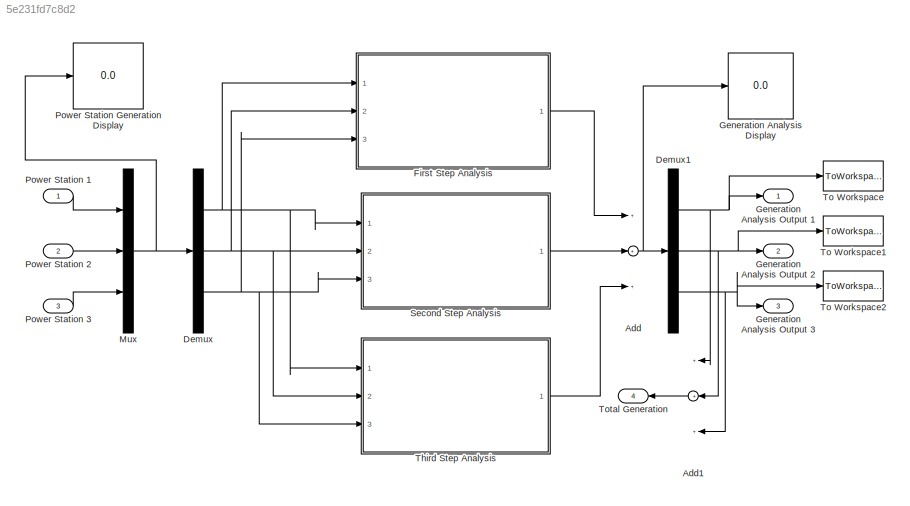
MODEL slx_5e231fd7c8d2
KIND model
BLOCK [Sum] Add
  InputSameDT = off
  Inputs = +++
  OutDataTypeStr = Inherit: Inherit via internal rule
  Ports = [3, 1]
  SaturateOnIntegerOverflow = off
BLOCK [Sum] Add1
  InputSameDT = off
  Inputs = +++
  OutDataTypeStr = Inherit: Inherit via internal rule
  Ports = [3, 1]
  SaturateOnIntegerOverflow = off
BLOCK [Demux] Demux
  DisplayOption = bar
  Outputs = 3
  Ports = [1, 3]
BLOCK [Demux] Demux1
  DisplayOption = bar
  Outputs = 3
  Ports = [1, 3]
BLOCK [ModelReference] First Step Analysis
  CopyOfModelName = F_S.slx
  DefaultDataLogging = on
  ModelNameDialog = F_S.slx
  ModelReferenceVersion = 1.15
  Ports = [3, 1]
BLOCK [Display] Generation Analysis Display
  Decimation = 1
  Lockdown = off
  Ports = [1]
BLOCK [Outport] Generation Analysis Output 1
  IconDisplay = Port number
BLOCK [Outport] Generation Analysis Output 2
  IconDisplay = Port number
  Port = 2
BLOCK [Outport] Generation Analysis Output 3
  IconDisplay = Port number
  Port = 3
BLOCK [Mux] Mux
  DisplayOption = bar
  Inputs = 3
  Ports = [3, 1]
BLOCK [Inport] Power Station 1
  IconDisplay = Port number
BLOCK [Inport] Power Station 2
  IconDisplay = Port number
  Port = 2
BLOCK [Inport] Power Station 3
  IconDisplay = Port number
  Port = 3
BLOCK [Display] Power Station Generation Display
  Decimation = 1
  Lockdown = off
  Ports = [1]
BLOCK [ModelReference] Second Step Analysis
  CopyOfModelName = S_S.slx
  DefaultDataLogging = on
  ModelNameDialog = S_S.slx
  ModelReferenceVersion = 1.13
  Ports = [3, 1]
BLOCK [ModelReference] Third Step Analysis
  CopyOfModelName = T_S.slx
  DefaultDataLogging = on
  ModelNameDialog = T_S.slx
  ModelReferenceVersion = 1.13
  Ports = [3, 1]
BLOCK [ToWorkspace] To Workspace
  MaxDataPoints = inf
  Ports = [1]
  SampleTime = -1
  VariableName = PP1
BLOCK [ToWorkspace] To Workspace1
  MaxDataPoints = inf
  Ports = [1]
  SampleTime = -1
  VariableName = PP2
BLOCK [ToWorkspace] To Workspace2
  MaxDataPoints = inf
  Ports = [1]
  SampleTime = -1
  VariableName = PP3
BLOCK [Outport] Total Generation 
  IconDisplay = Port number
  Port = 4
LINE Add1:1 -> Total Generation :1
NET Add:1 -> Demux1:1, Generation Analysis Display:1
NET Demux1:1 -> Add1:1, Generation Analysis Output 1:1, To Workspace:1
NET Demux1:2 -> Add1:2, Generation Analysis Output 2:1, To Workspace1:1
NET Demux1:3 -> Add1:3, Generation Analysis Output 3:1, To Workspace2:1
NET Demux:1 -> First Step Analysis:1, Second Step Analysis:1, Third Step Analysis:1
NET Demux:2 -> First Step Analysis:2, Second Step Analysis:2, Third Step Analysis:2
NET Demux:3 -> First Step Analysis:3, Second Step Analysis:3, Third Step Analysis:3
LINE First Step Analysis:1 -> Add:1
NET Mux:1 -> Demux:1, Power Station Generation Display:1
LINE Power Station 1:1 -> Mux:1
LINE Power Station 2:1 -> Mux:2
LINE Power Station 3:1 -> Mux:3
LINE Second Step Analysis:1 -> Add:2
LINE Third Step Analysis:1 -> Add:3
note: NET lines group one-source signal fan-out (src -> all destinations, sorted); 1:1 wires keep LINE
